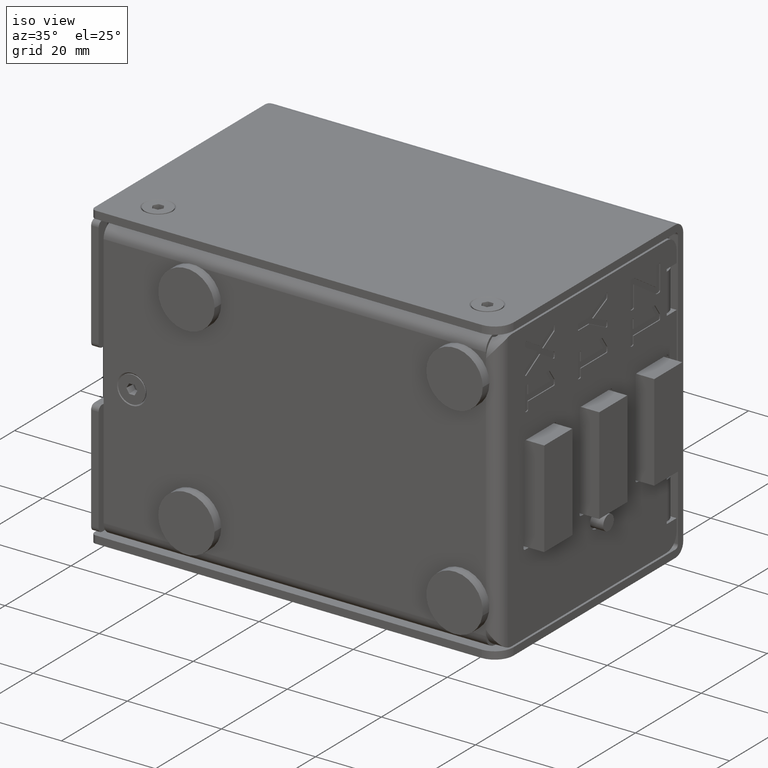
[diagram: clean part render]
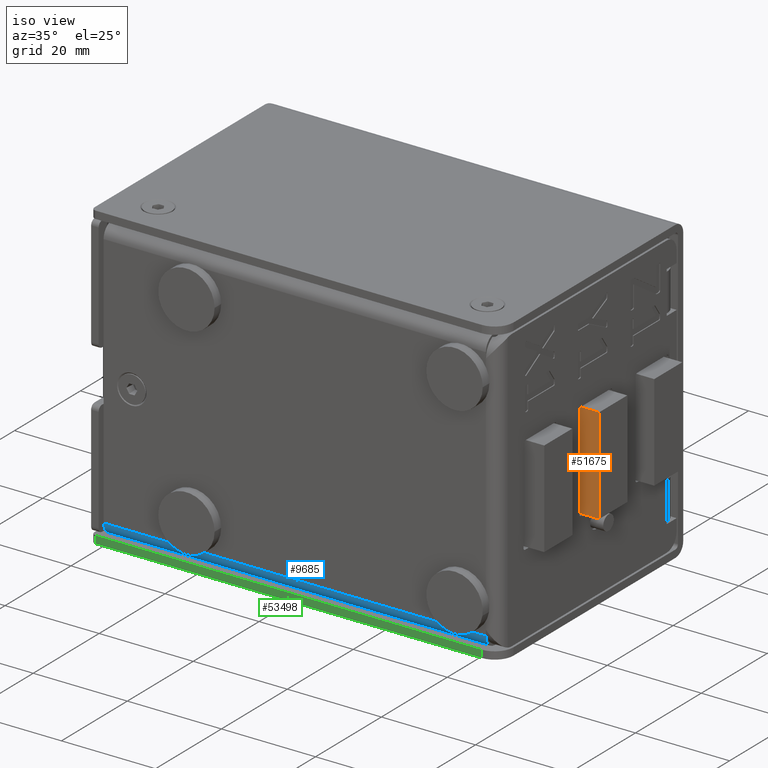
[diagram: same view with three faces highlighted in distinct colors, each labeled with its STEP entity id]
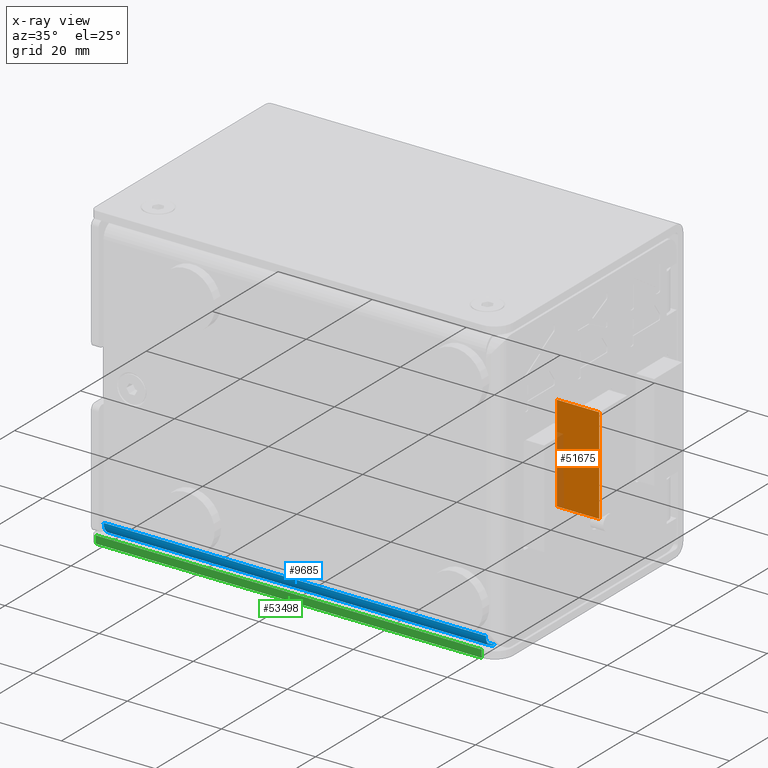
[diagram: x-ray of the same camera — body ghosted, the three highlighted faces saturated]
A machine part, iso view with three faces highlighted in distinct colors.
The next image is the same camera in x-ray (body ghosted, the three faces saturated) — at least one of them is partly hidden behind the body in this view.
Their STEP definitions:

[orange] entity #51675 — the highlighted planar face has unit normal (0, -1, -0).
#1477 = LINE ( 'NONE', #21698, #58585 ) ;
#2242 = ORIENTED_EDGE ( 'NONE', *, *, #47125, .F. ) ;
#3886 = ORIENTED_EDGE ( 'NONE', *, *, #61707, .T. ) ;
#4456 = DIRECTION ( 'NONE',  ( 1.561251128379125500E-017, 1.666137165190463100E-017, -1.000000000000000000 ) ) ;
#7271 = VERTEX_POINT ( 'NONE', #60189 ) ;
#14360 = VERTEX_POINT ( 'NONE', #63183 ) ;
#14720 = DIRECTION ( 'NONE',  ( 1.000000000000000000, 9.051608351169341700E-018, 1.561251128379125500E-017 ) ) ;
#14814 = VECTOR ( 'NONE', #31885, 1000.000000000000000 ) ;
#21324 = VERTEX_POINT ( 'NONE', #31253 ) ;
#21698 = CARTESIAN_POINT ( 'NONE',  ( 41.19699846506262000, 11.57412546596318300, -12.85000000000007200 ) ) ;
#25130 = ORIENTED_EDGE ( 'NONE', *, *, #66036, .T. ) ;
#28615 = VECTOR ( 'NONE', #4456, 1000.000000000000000 ) ;
#31253 = CARTESIAN_POINT ( 'NONE',  ( 50.19699846506281900, 11.57412546596318300, -12.85000000000007200 ) ) ;
#31602 = LINE ( 'NONE', #53189, #68672 ) ;
#31885 = DIRECTION ( 'NONE',  ( 1.561251128379125500E-017, 1.666137165190463100E-017, -1.000000000000000000 ) ) ;
#32836 = DIRECTION ( 'NONE',  ( 1.561251128379125500E-017, 1.666137165190463100E-017, -1.000000000000000000 ) ) ;
#36971 = LINE ( 'NONE', #69039, #28615 ) ;
#37265 = CARTESIAN_POINT ( 'NONE',  ( 50.19699846506281900, 11.57412546596318300, 7.650000000000078500 ) ) ;
#38805 = ORIENTED_EDGE ( 'NONE', *, *, #62328, .F. ) ;
#43397 = DIRECTION ( 'NONE',  ( 9.051608351169528200E-018, -1.000000000000000000, -1.666137165190463100E-017 ) ) ;
#47125 = EDGE_CURVE ( 'NONE', #7271, #21324, #65244, .T. ) ;
#51675 = ADVANCED_FACE ( 'NONE', ( #52463 ), #53245, .T. ) ;
#52463 = FACE_OUTER_BOUND ( 'NONE', #67434, .T. ) ;
#53189 = CARTESIAN_POINT ( 'NONE',  ( 41.19699846506262000, 11.57412546596318300, 7.650000000000078500 ) ) ;
#53245 = PLANE ( 'NONE',  #64286 ) ;
#58585 = VECTOR ( 'NONE', #65116, 1000.000000000000000 ) ;
#58915 = CARTESIAN_POINT ( 'NONE',  ( 41.19699846506262000, 11.57412546596318300, 7.650000000000078500 ) ) ;
#60189 = CARTESIAN_POINT ( 'NONE',  ( 50.19699846506281900, 11.57412546596318300, 7.650000000000078500 ) ) ;
#60438 = VERTEX_POINT ( 'NONE', #64016 ) ;
#61707 = EDGE_CURVE ( 'NONE', #14360, #21324, #1477, .T. ) ;
#62328 = EDGE_CURVE ( 'NONE', #60438, #7271, #31602, .T. ) ;
#63183 = CARTESIAN_POINT ( 'NONE',  ( 41.19699846506262000, 11.57412546596318300, -12.85000000000007200 ) ) ;
#64016 = CARTESIAN_POINT ( 'NONE',  ( 41.19699846506262000, 11.57412546596318300, 7.650000000000078500 ) ) ;
#64286 = AXIS2_PLACEMENT_3D ( 'NONE', #58915, #43397, #32836 ) ;
#65116 = DIRECTION ( 'NONE',  ( 1.000000000000000000, 9.051608351169341700E-018, 1.561251128379125500E-017 ) ) ;
#65244 = LINE ( 'NONE', #37265, #14814 ) ;
#66036 = EDGE_CURVE ( 'NONE', #60438, #14360, #36971, .T. ) ;
#67434 = EDGE_LOOP ( 'NONE', ( #3886, #2242, #38805, #25130 ) ) ;
#68672 = VECTOR ( 'NONE', #14720, 1000.000000000000000 ) ;
#69039 = CARTESIAN_POINT ( 'NONE',  ( 41.19699846506262000, 11.57412546596318300, 7.650000000000078500 ) ) ;

[blue] entity #9685 — the highlighted cylindrical surface (edge-blend (fillet) strip) has radius 2.7366 mm, axis along (-1, -0, 0).
#5057 = EDGE_LOOP ( 'NONE', ( #47248, #6022, #26336, #37731 ) ) ;
#6022 = ORIENTED_EDGE ( 'NONE', *, *, #26614, .F. ) ;
#6284 = VECTOR ( 'NONE', #53953, 1000.000000000000000 ) ;
#7544 = CARTESIAN_POINT ( 'NONE',  ( -37.30300153493760700, -11.18927453403680000, -29.99999999999999600 ) ) ;
#9124 = VERTEX_POINT ( 'NONE', #61795 ) ;
#9685 = ADVANCED_FACE ( 'NONE', ( #63718 ), #57012, .T. ) ;
#11752 = CARTESIAN_POINT ( 'NONE',  ( 43.96039846506241100, -11.18927453403679300, -29.99999999999999600 ) ) ;
#12914 = CIRCLE ( 'NONE', #36878, 2.736600000000000600 ) ;
#13587 = AXIS2_PLACEMENT_3D ( 'NONE', #20634, #63370, #26484 ) ;
#15865 = EDGE_CURVE ( 'NONE', #25535, #9124, #53744, .T. ) ;
#18086 = CARTESIAN_POINT ( 'NONE',  ( -37.30300153493760700, -11.18927453403681900, -27.26340000000000100 ) ) ;
#20240 = EDGE_CURVE ( 'NONE', #68368, #25535, #51794, .T. ) ;
#20634 = CARTESIAN_POINT ( 'NONE',  ( 43.96039846506240400, -11.18927453403681200, -27.26340000000000100 ) ) ;
#25535 = VERTEX_POINT ( 'NONE', #63006 ) ;
#26336 = ORIENTED_EDGE ( 'NONE', *, *, #44111, .T. ) ;
#26484 = DIRECTION ( 'NONE',  ( 0.0000000000000000000, -1.000000000000000000, 0.0000000000000000000 ) ) ;
#26614 = EDGE_CURVE ( 'NONE', #38855, #68368, #12914, .T. ) ;
#28086 = AXIS2_PLACEMENT_3D ( 'NONE', #38792, #44423, #49602 ) ;
#29812 = DIRECTION ( 'NONE',  ( -1.000000000000000000, -7.359504293276566200E-017, 0.0000000000000000000 ) ) ;
#36878 = AXIS2_PLACEMENT_3D ( 'NONE', #18086, #29812, #66954 ) ;
#37731 = ORIENTED_EDGE ( 'NONE', *, *, #15865, .F. ) ;
#38193 = LINE ( 'NONE', #11752, #6284 ) ;
#38792 = CARTESIAN_POINT ( 'NONE',  ( -37.30300153493760700, -11.18927453403681900, -27.26340000000000100 ) ) ;
#38855 = VERTEX_POINT ( 'NONE', #7544 ) ;
#42700 = CARTESIAN_POINT ( 'NONE',  ( -37.30300153493760700, -13.92587453403681900, -27.26340000000000100 ) ) ;
#44111 = EDGE_CURVE ( 'NONE', #38855, #9124, #38193, .T. ) ;
#44423 = DIRECTION ( 'NONE',  ( -1.000000000000000000, -7.359504293276566200E-017, 0.0000000000000000000 ) ) ;
#47248 = ORIENTED_EDGE ( 'NONE', *, *, #20240, .F. ) ;
#47599 = DIRECTION ( 'NONE',  ( 1.000000000000000000, 7.359504293276566200E-017, -0.0000000000000000000 ) ) ;
#49602 = DIRECTION ( 'NONE',  ( 0.0000000000000000000, 0.0000000000000000000, -1.000000000000000000 ) ) ;
#51794 = LINE ( 'NONE', #42700, #53441 ) ;
#53441 = VECTOR ( 'NONE', #47599, 1000.000000000000000 ) ;
#53744 = CIRCLE ( 'NONE', #13587, 2.736600000000000600 ) ;
#53953 = DIRECTION ( 'NONE',  ( 1.000000000000000000, 8.538768872465709400E-017, -0.0000000000000000000 ) ) ;
#56882 = CARTESIAN_POINT ( 'NONE',  ( -37.30300153493760700, -13.92587453403681900, -27.26340000000000100 ) ) ;
#57012 = CYLINDRICAL_SURFACE ( 'NONE', #28086, 2.736599999999998800 ) ;
#61795 = CARTESIAN_POINT ( 'NONE',  ( 43.96039846506240400, -11.18927453403681200, -30.00000000000000400 ) ) ;
#63006 = CARTESIAN_POINT ( 'NONE',  ( 43.96039846506240400, -13.92587453403681300, -27.26340000000000100 ) ) ;
#63370 = DIRECTION ( 'NONE',  ( 1.000000000000000000, 7.359504293276566200E-017, -0.0000000000000000000 ) ) ;
#63718 = FACE_OUTER_BOUND ( 'NONE', #5057, .T. ) ;
#66954 = DIRECTION ( 'NONE',  ( 0.0000000000000000000, -1.000000000000000000, 0.0000000000000000000 ) ) ;
#68368 = VERTEX_POINT ( 'NONE', #56882 ) ;

[green] entity #53498 — the highlighted planar face has unit normal (0, -1, -0).
#1505 = VECTOR ( 'NONE', #42478, 1000.000000000000000 ) ;
#3030 = CARTESIAN_POINT ( 'NONE',  ( -40.30300153493762800, -13.42587453403681200, -30.40000000000018300 ) ) ;
#4572 = ORIENTED_EDGE ( 'NONE', *, *, #47335, .F. ) ;
#5920 = DIRECTION ( 'NONE',  ( 0.0000000000000000000, -1.000000000000000000, -3.491481338843133400E-015 ) ) ;
#6435 = CARTESIAN_POINT ( 'NONE',  ( 42.69699846506237900, -13.42587453403681200, -30.40000000000018300 ) ) ;
#7769 = DIRECTION ( 'NONE',  ( -0.0000000000000000000, 3.491481338843133400E-015, -1.000000000000000000 ) ) ;
#9070 = LINE ( 'NONE', #34262, #14094 ) ;
#9113 = DIRECTION ( 'NONE',  ( 1.000000000000000000, 0.0000000000000000000, 0.0000000000000000000 ) ) ;
#9428 = ORIENTED_EDGE ( 'NONE', *, *, #67575, .T. ) ;
#10400 = AXIS2_PLACEMENT_3D ( 'NONE', #36392, #5920, #15473 ) ;
#10584 = LINE ( 'NONE', #3030, #37432 ) ;
#14094 = VECTOR ( 'NONE', #7769, 1000.000000000000000 ) ;
#14198 = FACE_OUTER_BOUND ( 'NONE', #31845, .T. ) ;
#15473 = DIRECTION ( 'NONE',  ( 0.0000000000000000000, 3.491481338843133400E-015, -1.000000000000000000 ) ) ;
#18127 = ORIENTED_EDGE ( 'NONE', *, *, #23344, .T. ) ;
#21870 = CARTESIAN_POINT ( 'NONE',  ( 42.69699846506237900, -13.42587453403680400, -32.00000000000017800 ) ) ;
#23344 = EDGE_CURVE ( 'NONE', #57357, #33966, #25077, .T. ) ;
#25077 = LINE ( 'NONE', #32085, #41813 ) ;
#31845 = EDGE_LOOP ( 'NONE', ( #4572, #9428, #18127, #46003 ) ) ;
#32085 = CARTESIAN_POINT ( 'NONE',  ( -40.30300153493762800, -13.42587453403680400, -32.00000000000017800 ) ) ;
#33966 = VERTEX_POINT ( 'NONE', #60601 ) ;
#34262 = CARTESIAN_POINT ( 'NONE',  ( -39.30300153493762800, -13.42587453403680400, -32.00000000000017800 ) ) ;
#36392 = CARTESIAN_POINT ( 'NONE',  ( -40.30300153493762800, -13.42587453403680400, -32.00000000000017800 ) ) ;
#36843 = PLANE ( 'NONE',  #10400 ) ;
#37432 = VECTOR ( 'NONE', #9113, 1000.000000000000000 ) ;
#40350 = CARTESIAN_POINT ( 'NONE',  ( -39.30300153493762800, -13.42587453403681200, -30.40000000000018300 ) ) ;
#41813 = VECTOR ( 'NONE', #64031, 1000.000000000000000 ) ;
#42478 = DIRECTION ( 'NONE',  ( 0.0000000000000000000, -3.491481338843133400E-015, 1.000000000000000000 ) ) ;
#42818 = CARTESIAN_POINT ( 'NONE',  ( -39.30300153493762800, -13.42587453403680400, -32.00000000000017800 ) ) ;
#46003 = ORIENTED_EDGE ( 'NONE', *, *, #46046, .T. ) ;
#46046 = EDGE_CURVE ( 'NONE', #33966, #52092, #51891, .T. ) ;
#47335 = EDGE_CURVE ( 'NONE', #61471, #52092, #10584, .T. ) ;
#51891 = LINE ( 'NONE', #21870, #1505 ) ;
#52092 = VERTEX_POINT ( 'NONE', #6435 ) ;
#53498 = ADVANCED_FACE ( 'NONE', ( #14198 ), #36843, .T. ) ;
#57357 = VERTEX_POINT ( 'NONE', #42818 ) ;
#60601 = CARTESIAN_POINT ( 'NONE',  ( 42.69699846506237900, -13.42587453403680400, -32.00000000000017800 ) ) ;
#61471 = VERTEX_POINT ( 'NONE', #40350 ) ;
#64031 = DIRECTION ( 'NONE',  ( 1.000000000000000000, 0.0000000000000000000, 0.0000000000000000000 ) ) ;
#67575 = EDGE_CURVE ( 'NONE', #61471, #57357, #9070, .T. ) ;